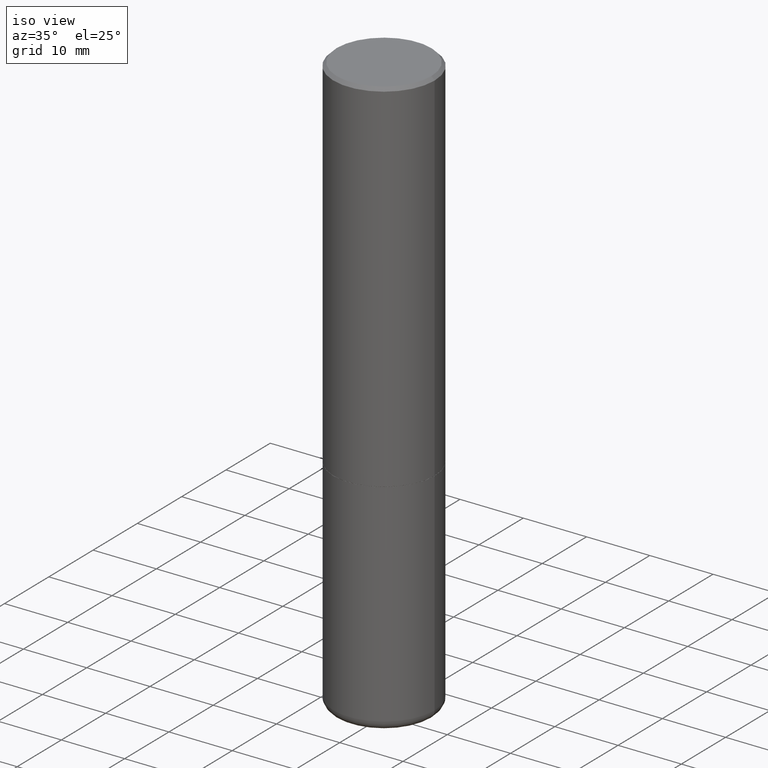
[diagram: clean part render]
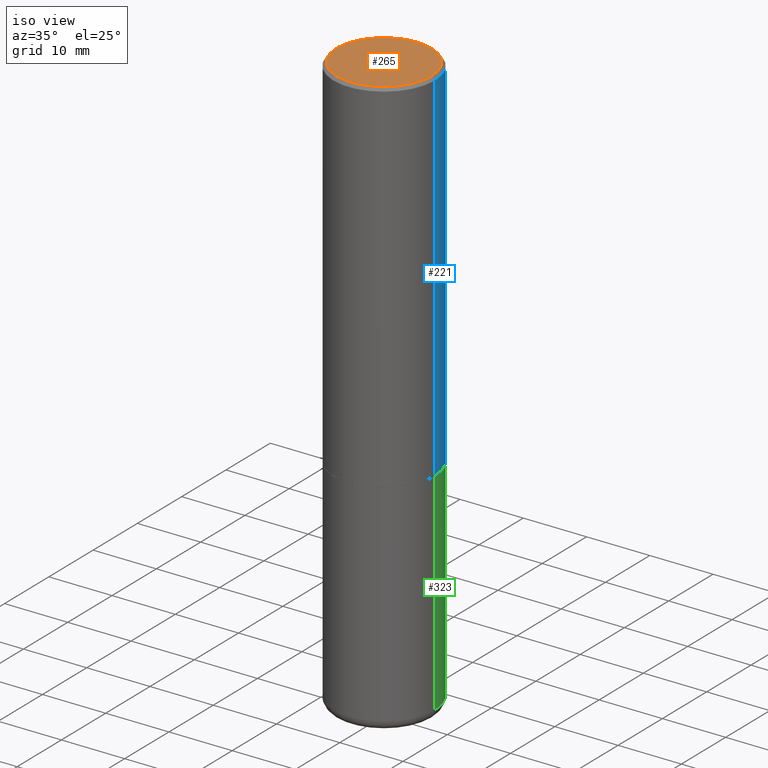
[diagram: same view with three faces highlighted in distinct colors, each labeled with its STEP entity id]
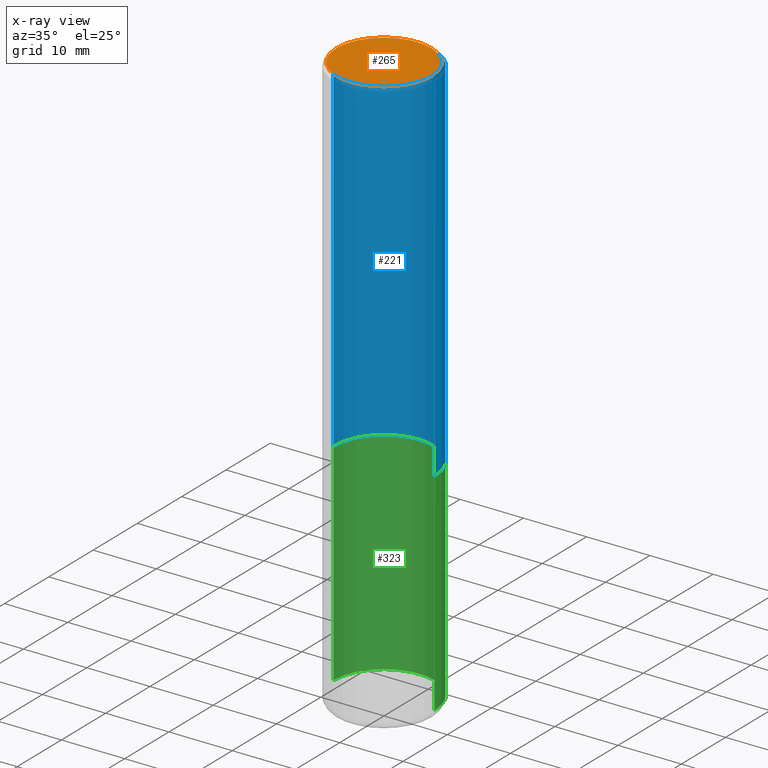
[diagram: x-ray of the same camera — body ghosted, the three highlighted faces saturated]
A machine part, iso view with three faces highlighted in distinct colors.
The next image is the same camera in x-ray (body ghosted, the three faces saturated) — at least one of them is partly hidden behind the body in this view.
Their STEP definitions:

[orange] entity #265 — the highlighted planar face has unit normal (0, -0, -1).
#3 = AXIS2_PLACEMENT_3D ( 'NONE', #179, #329, #357 ) ;
#14 = CARTESIAN_POINT ( 'NONE',  ( -0.2949499999999999345, 2.094539655171995712E-15, 6.402768735149164613E-17 ) ) ;
#47 = CARTESIAN_POINT ( 'NONE',  ( -1.565777121502829671E-45, 2.235514755570671047E-31, 6.402768735150616610E-17 ) ) ;
#54 = CARTESIAN_POINT ( 'NONE',  ( 2.059624841783564063E-15, 0.2949499999999999345, -9.977985772160325786E-16 ) ) ;
#63 = CARTESIAN_POINT ( 'NONE',  ( 0.2949499999999999345, -2.127023677808860075E-15, 6.402768735152080933E-17 ) ) ;
#81 = EDGE_LOOP ( 'NONE', ( #115, #350 ) ) ;
#84 = AXIS2_PLACEMENT_3D ( 'NONE', #47, #202, #288 ) ;
#87 = DIRECTION ( 'NONE',  ( 2.438088387897960049E-29, -3.491481338843145188E-15, -1.000000000000000000 ) ) ;
#103 = VERTEX_POINT ( 'NONE', #63 ) ;
#113 = FACE_OUTER_BOUND ( 'NONE', #81, .T. ) ;
#115 = ORIENTED_EDGE ( 'NONE', *, *, #379, .T. ) ;
#155 = CIRCLE ( 'NONE', #3, 0.2949499999999999345 ) ;
#179 = CARTESIAN_POINT ( 'NONE',  ( -1.565777121502829671E-45, 2.235514755570671047E-31, 6.402768735150616610E-17 ) ) ;
#184 = VERTEX_POINT ( 'NONE', #14 ) ;
#194 = AXIS2_PLACEMENT_3D ( 'NONE', #54, #87, #305 ) ;
#202 = DIRECTION ( 'NONE',  ( -2.445468806185136597E-29, 3.491481338843145583E-15, 1.000000000000000000 ) ) ;
#206 = EDGE_CURVE ( 'NONE', #103, #184, #287, .T. ) ;
#209 = PLANE ( 'NONE',  #194 ) ;
#265 = ADVANCED_FACE ( 'NONE', ( #113 ), #209, .F. ) ;
#287 = CIRCLE ( 'NONE', #84, 0.2949499999999999345 ) ;
#288 = DIRECTION ( 'NONE',  ( 1.000000000000000000, -6.982962677686267499E-15, 4.876696176320539145E-29 ) ) ;
#305 = DIRECTION ( 'NONE',  ( -1.000000000000000000, 6.982962677686265922E-15, -4.876176775795935793E-29 ) ) ;
#329 = DIRECTION ( 'NONE',  ( -2.445468806185136597E-29, 3.491481338843145583E-15, 1.000000000000000000 ) ) ;
#350 = ORIENTED_EDGE ( 'NONE', *, *, #206, .T. ) ;
#357 = DIRECTION ( 'NONE',  ( 1.000000000000000000, -6.982962677686267499E-15, 4.876696176320539145E-29 ) ) ;
#379 = EDGE_CURVE ( 'NONE', #184, #103, #155, .T. ) ;

[blue] entity #221 — the highlighted cylindrical surface (partial cylindrical patch) has radius 7.9997 mm, axis along (-0, 0, 1).
#4 = DIRECTION ( 'NONE',  ( 1.000000000000000000, -6.982962677686267499E-15, 0.000000000000000000 ) ) ;
#18 = ORIENTED_EDGE ( 'NONE', *, *, #230, .F. ) ;
#33 = EDGE_CURVE ( 'NONE', #145, #263, #414, .T. ) ;
#40 = FACE_OUTER_BOUND ( 'NONE', #51, .T. ) ;
#42 = CARTESIAN_POINT ( 'NONE',  ( -0.3149500000000001743, 2.237854346276436774E-15, -1.549218606675783237E-29 ) ) ;
#51 = EDGE_LOOP ( 'NONE', ( #361, #292, #18, #214 ) ) ;
#53 = DIRECTION ( 'NONE',  ( 1.000000000000000000, -6.982962677686266711E-15, 0.000000000000000000 ) ) ;
#72 = DIRECTION ( 'NONE',  ( -2.445468806185136597E-29, 3.491481338843145583E-15, 1.000000000000000000 ) ) ;
#83 = VECTOR ( 'NONE', #392, 39.37007874015748143 ) ;
#88 = CARTESIAN_POINT ( 'NONE',  ( -0.3149500000000000077, 2.129454468560426573E-15, -0.02000000000000006981 ) ) ;
#93 = CIRCLE ( 'NONE', #374, 0.3149500000000000077 ) ;
#97 = CARTESIAN_POINT ( 'NONE',  ( 0.3149500000000000077, -2.230543471175007450E-15, -0.02000000000000006981 ) ) ;
#104 = CARTESIAN_POINT ( 'NONE',  ( 5.485186532273261485E-29, -7.831392643025175821E-15, -2.242999999999999883 ) ) ;
#111 = LINE ( 'NONE', #142, #83 ) ;
#122 = CIRCLE ( 'NONE', #403, 0.3149500000000002853 ) ;
#124 = CYLINDRICAL_SURFACE ( 'NONE', #153, 0.3149500000000001743 ) ;
#131 = DIRECTION ( 'NONE',  ( -2.445468806185136877E-29, 3.491481338843145188E-15, 1.000000000000000000 ) ) ;
#132 = CARTESIAN_POINT ( 'NONE',  ( -0.3149500000000002853, -1.712756788624580222E-15, -2.242999999999999883 ) ) ;
#133 = EDGE_CURVE ( 'NONE', #387, #145, #122, .T. ) ;
#135 = DIRECTION ( 'NONE',  ( -2.445468806185136597E-29, 3.491481338843145583E-15, 1.000000000000000000 ) ) ;
#139 = CARTESIAN_POINT ( 'NONE',  ( 0.3149500000000002853, -1.003067673836246727E-14, -2.242999999999999883 ) ) ;
#142 = CARTESIAN_POINT ( 'NONE',  ( 0.3149500000000001743, -2.199284095337290660E-15, 1.535751875536930690E-29 ) ) ;
#145 = VERTEX_POINT ( 'NONE', #132 ) ;
#153 = AXIS2_PLACEMENT_3D ( 'NONE', #380, #407, #289 ) ;
#214 = ORIENTED_EDGE ( 'NONE', *, *, #411, .F. ) ;
#221 = ADVANCED_FACE ( 'NONE', ( #40 ), #124, .T. ) ;
#230 = EDGE_CURVE ( 'NONE', #335, #263, #93, .T. ) ;
#263 = VERTEX_POINT ( 'NONE', #88 ) ;
#289 = DIRECTION ( 'NONE',  ( 1.000000000000000000, -6.982962677686265922E-15, 4.876176775795935232E-29 ) ) ;
#292 = ORIENTED_EDGE ( 'NONE', *, *, #33, .T. ) ;
#319 = VECTOR ( 'NONE', #131, 39.37007874015748143 ) ;
#335 = VERTEX_POINT ( 'NONE', #97 ) ;
#352 = CARTESIAN_POINT ( 'NONE',  ( 4.890937612370289799E-31, -6.982962677686315028E-17, -0.02000000000000006981 ) ) ;
#361 = ORIENTED_EDGE ( 'NONE', *, *, #133, .T. ) ;
#374 = AXIS2_PLACEMENT_3D ( 'NONE', #352, #72, #53 ) ;
#380 = CARTESIAN_POINT ( 'NONE',  ( 0.000000000000000000, 0.000000000000000000, 0.000000000000000000 ) ) ;
#387 = VERTEX_POINT ( 'NONE', #139 ) ;
#392 = DIRECTION ( 'NONE',  ( -2.445468806185136877E-29, 3.491481338843145188E-15, 1.000000000000000000 ) ) ;
#403 = AXIS2_PLACEMENT_3D ( 'NONE', #104, #135, #4 ) ;
#407 = DIRECTION ( 'NONE',  ( -2.445468806185136597E-29, 3.491481338843145583E-15, 1.000000000000000000 ) ) ;
#411 = EDGE_CURVE ( 'NONE', #387, #335, #111, .T. ) ;
#414 = LINE ( 'NONE', #42, #319 ) ;

[green] entity #323 — the highlighted cylindrical surface (partial cylindrical patch) has radius 7.9997 mm, axis along (-0, 0, 1).
#1 = CARTESIAN_POINT ( 'NONE',  ( -0.3149500000000000077, 2.237854346276435590E-15, -1.549218606675782676E-29 ) ) ;
#12 = CIRCLE ( 'NONE', #246, 0.3149500000000000077 ) ;
#13 = VECTOR ( 'NONE', #358, 39.37007874015748143 ) ;
#16 = EDGE_CURVE ( 'NONE', #359, #370, #70, .T. ) ;
#17 = ORIENTED_EDGE ( 'NONE', *, *, #278, .F. ) ;
#22 = DIRECTION ( 'NONE',  ( 1.000000000000000000, -6.982962677686266711E-15, 0.000000000000000000 ) ) ;
#35 = DIRECTION ( 'NONE',  ( -2.445468806185136597E-29, 3.491481338843145583E-15, 1.000000000000000000 ) ) ;
#66 = CARTESIAN_POINT ( 'NONE',  ( -0.3149500000000000077, -1.020194451588780718E-14, -3.562899999999999956 ) ) ;
#70 = LINE ( 'NONE', #1, #337 ) ;
#82 = EDGE_CURVE ( 'NONE', #286, #359, #12, .T. ) ;
#96 = ORIENTED_EDGE ( 'NONE', *, *, #82, .T. ) ;
#101 = AXIS2_PLACEMENT_3D ( 'NONE', #336, #303, #22 ) ;
#117 = VERTEX_POINT ( 'NONE', #294 ) ;
#127 = DIRECTION ( 'NONE',  ( 1.000000000000000000, -6.982962677686266711E-15, 4.876176775795936353E-29 ) ) ;
#134 = EDGE_LOOP ( 'NONE', ( #96, #396, #17, #147 ) ) ;
#147 = ORIENTED_EDGE ( 'NONE', *, *, #181, .F. ) ;
#181 = EDGE_CURVE ( 'NONE', #286, #117, #235, .T. ) ;
#195 = CARTESIAN_POINT ( 'NONE',  ( 8.712960809557023143E-29, -1.243979886216424317E-14, -3.562899999999999956 ) ) ;
#234 = CARTESIAN_POINT ( 'NONE',  ( -0.3149500000000000077, -7.899487146987694225E-15, -2.243999999999999773 ) ) ;
#235 = LINE ( 'NONE', #264, #13 ) ;
#246 = AXIS2_PLACEMENT_3D ( 'NONE', #195, #255, #345 ) ;
#253 = CYLINDRICAL_SURFACE ( 'NONE', #313, 0.3149500000000000077 ) ;
#255 = DIRECTION ( 'NONE',  ( -2.445468806185136597E-29, 3.491481338843145583E-15, 1.000000000000000000 ) ) ;
#256 = DIRECTION ( 'NONE',  ( -2.445468806185136877E-29, 3.491481338843145188E-15, 1.000000000000000000 ) ) ;
#264 = CARTESIAN_POINT ( 'NONE',  ( 0.3149500000000000077, -2.199284095337289871E-15, 1.535751875536930130E-29 ) ) ;
#278 = EDGE_CURVE ( 'NONE', #117, #370, #384, .T. ) ;
#286 = VERTEX_POINT ( 'NONE', #397 ) ;
#294 = CARTESIAN_POINT ( 'NONE',  ( 0.3149500000000000077, -1.003416821970130712E-14, -2.243999999999999773 ) ) ;
#303 = DIRECTION ( 'NONE',  ( -2.445468806185136597E-29, 3.491481338843145583E-15, 1.000000000000000000 ) ) ;
#313 = AXIS2_PLACEMENT_3D ( 'NONE', #317, #35, #127 ) ;
#317 = CARTESIAN_POINT ( 'NONE',  ( 0.000000000000000000, 0.000000000000000000, 0.000000000000000000 ) ) ;
#323 = ADVANCED_FACE ( 'NONE', ( #409 ), #253, .T. ) ;
#336 = CARTESIAN_POINT ( 'NONE',  ( 5.487632001079445967E-29, -7.834884124364017250E-15, -2.243999999999999773 ) ) ;
#337 = VECTOR ( 'NONE', #256, 39.37007874015748143 ) ;
#345 = DIRECTION ( 'NONE',  ( 1.000000000000000000, -6.982962677686269866E-15, 0.000000000000000000 ) ) ;
#358 = DIRECTION ( 'NONE',  ( -2.445468806185136877E-29, 3.491481338843145188E-15, 1.000000000000000000 ) ) ;
#359 = VERTEX_POINT ( 'NONE', #66 ) ;
#370 = VERTEX_POINT ( 'NONE', #234 ) ;
#384 = CIRCLE ( 'NONE', #101, 0.3149500000000000077 ) ;
#396 = ORIENTED_EDGE ( 'NONE', *, *, #16, .T. ) ;
#397 = CARTESIAN_POINT ( 'NONE',  ( 0.3149500000000000077, -1.463908295750153462E-14, -3.562899999999999956 ) ) ;
#409 = FACE_OUTER_BOUND ( 'NONE', #134, .T. ) ;